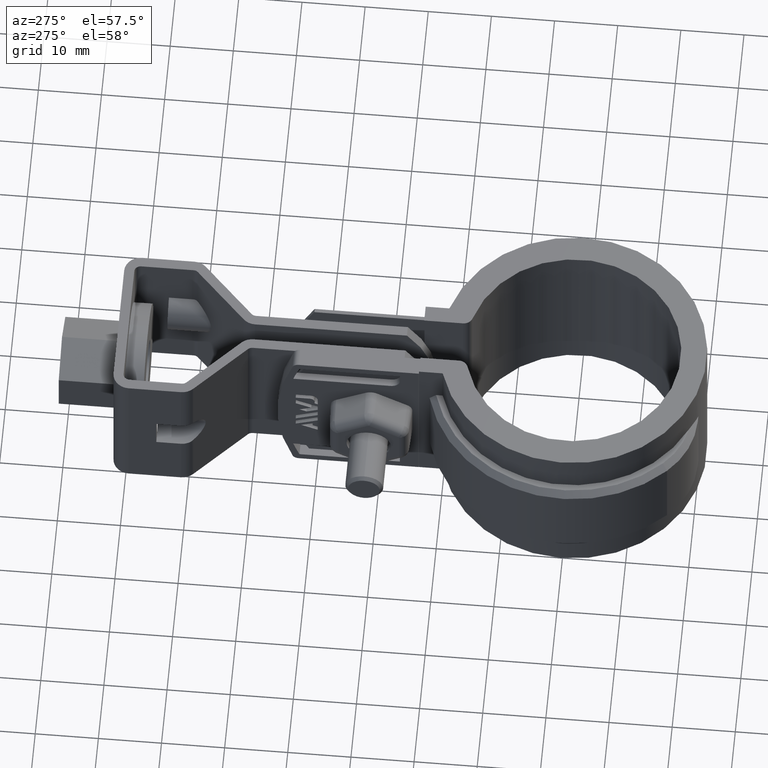
[diagram: clean part render]
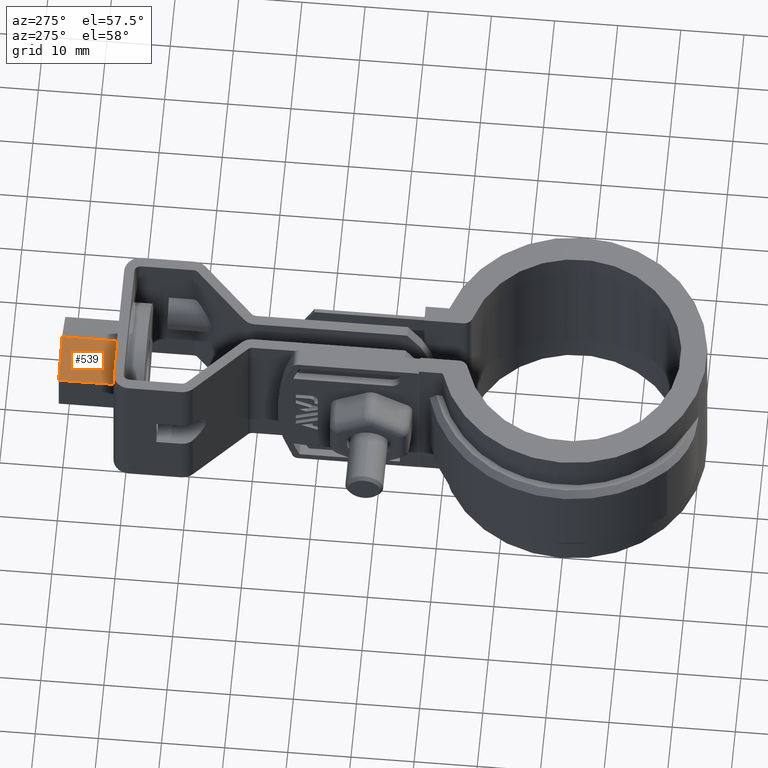
[diagram: same view with one face highlighted and labeled with its STEP entity id]
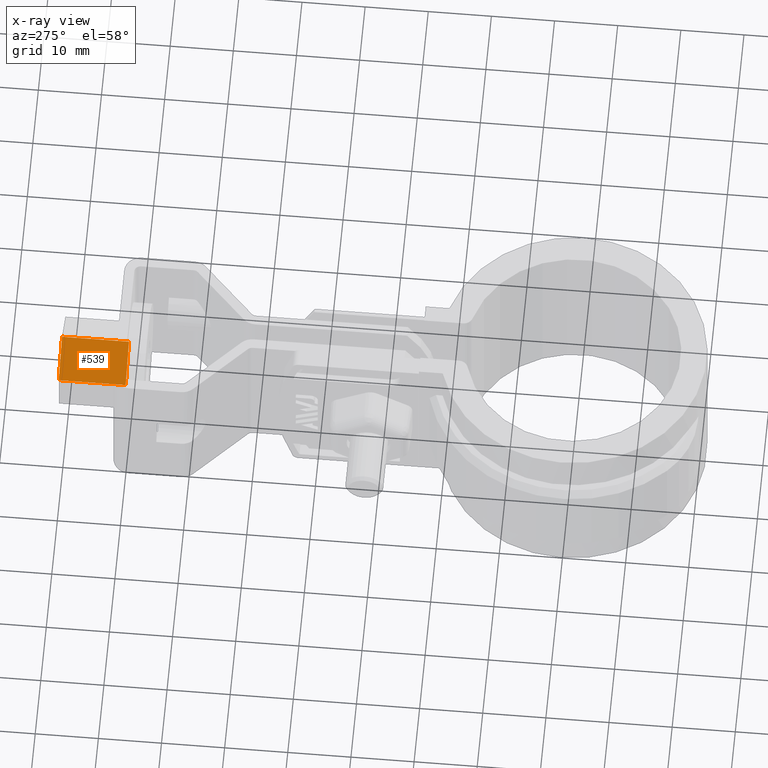
[diagram: x-ray of the same camera — body ghosted, the highlighted face saturated]
A machine part, auxiliary view. The second image highlights one B-rep face of the part: STEP entity #539.
The next image is the same camera in x-ray: the body ghosted, the highlighted face saturated — about 0% of this face is hidden behind the body in this view.
In plain terms, the highlighted planar face has unit normal (0.5, 0, -0.866).
Its self-contained STEP definition (entity closure, byte-faithful):
#539 = ADVANCED_FACE( '', ( #1069 ), #1070, .F. );
#1069 = FACE_OUTER_BOUND( '', #2162, .T. );
#1070 = PLANE( '', #2163 );
#2162 = EDGE_LOOP( '', ( #5081, #5082, #5083, #5084 ) );
#2163 = AXIS2_PLACEMENT_3D( '', #5085, #5086, #5087 );
#5081 = ORIENTED_EDGE( '', *, *, #6868, .T. );
#5082 = ORIENTED_EDGE( '', *, *, #6869, .F. );
#5083 = ORIENTED_EDGE( '', *, *, #6863, .F. );
#5084 = ORIENTED_EDGE( '', *, *, #6858, .T. );
#5085 = CARTESIAN_POINT( '', ( -5.94999900793328, 81.0043599829746, -9.06476340370498 ) );
#5086 = DIRECTION( '', ( 0.499999999633774, 1.09779661916409E-008, -0.866025403995879 ) );
#5087 = DIRECTION( '', ( 8.27180611947157E-025, -1.00000000000000, -1.26762634687020E-008 ) );
#6858 = EDGE_CURVE( '', #8117, #8115, #8118, .T. );
#6863 = EDGE_CURVE( '', #8117, #8124, #8125, .T. );
#6868 = EDGE_CURVE( '', #8115, #8131, #8133, .T. );
#6869 = EDGE_CURVE( '', #8124, #8131, #8134, .T. );
#8115 = VERTEX_POINT( '', #11450 );
#8117 = VERTEX_POINT( '', #11453 );
#8118 = LINE( '', #11454, #11455 );
#8124 = VERTEX_POINT( '', #11465 );
#8125 = LINE( '', #11466, #11467 );
#8131 = VERTEX_POINT( '', #11474 );
#8133 = LINE( '', #11477, #11478 );
#8134 = LINE( '', #11479, #11480 );
#11450 = CARTESIAN_POINT( '', ( -5.94999908088904, 70.4043599829746, -9.06476358019442 ) );
#11453 = CARTESIAN_POINT( '', ( -5.94999900793327, 81.0043599829746, -9.06476340370499 ) );
#11454 = CARTESIAN_POINT( '', ( -5.94999900793327, 81.0043599829746, -9.06476340370499 ) );
#11455 = VECTOR( '', #13179, 1000.00000000000 );
#11465 = CARTESIAN_POINT( '', ( 9.93519421149252E-007, 81.0043598848266, -5.62952930454286 ) );
#11466 = CARTESIAN_POINT( '', ( -5.94999900793328, 81.0043599829746, -9.06476340370498 ) );
#11467 = VECTOR( '', #13184, 1000.00000000000 );
#11474 = CARTESIAN_POINT( '', ( 9.20563649148581E-007, 70.4043598848266, -5.62952948103228 ) );
#11477 = CARTESIAN_POINT( '', ( -5.94999908088905, 70.4043599829746, -9.06476358019441 ) );
#11478 = VECTOR( '', #13193, 1000.00000000000 );
#11479 = CARTESIAN_POINT( '', ( 9.93519421149252E-007, 81.0043598848266, -5.62952930454286 ) );
#11480 = VECTOR( '', #13194, 1000.00000000000 );
#13179 = DIRECTION( '', ( -6.88262000006329E-009, -1.00000000000000, -1.66499459745878E-008 ) );
#13184 = DIRECTION( '', ( 0.866025403995880, -1.42854967473012E-008, 0.499999999633773 ) );
#13193 = DIRECTION( '', ( 0.866025403995880, -1.42854967473012E-008, 0.499999999633773 ) );
#13194 = DIRECTION( '', ( -6.88262000006329E-009, -1.00000000000000, -1.66499459745878E-008 ) );